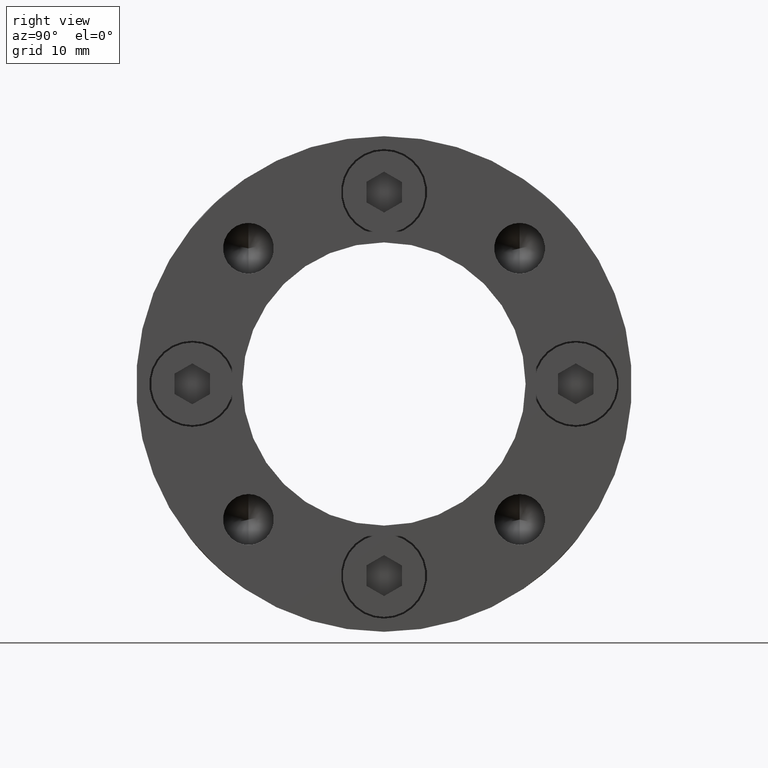
[diagram: clean part render]
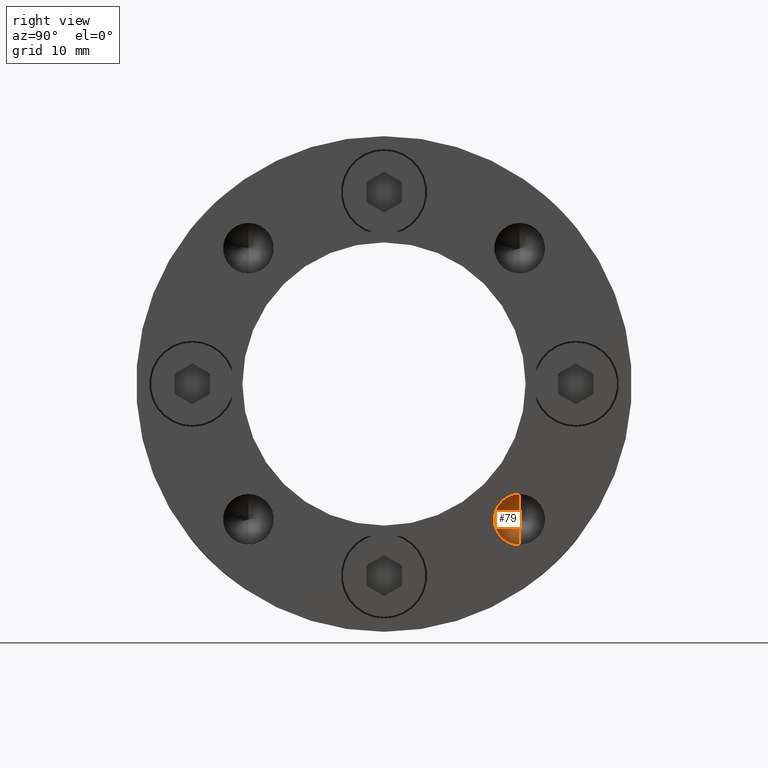
[diagram: same view with one face highlighted and labeled with its STEP entity id]
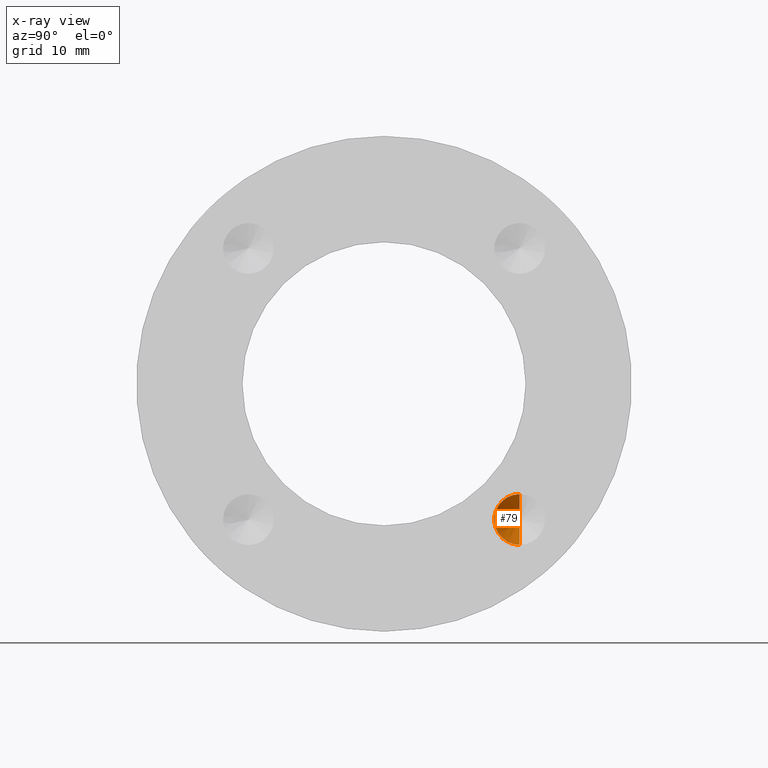
[diagram: x-ray of the same camera — body ghosted, the highlighted face saturated]
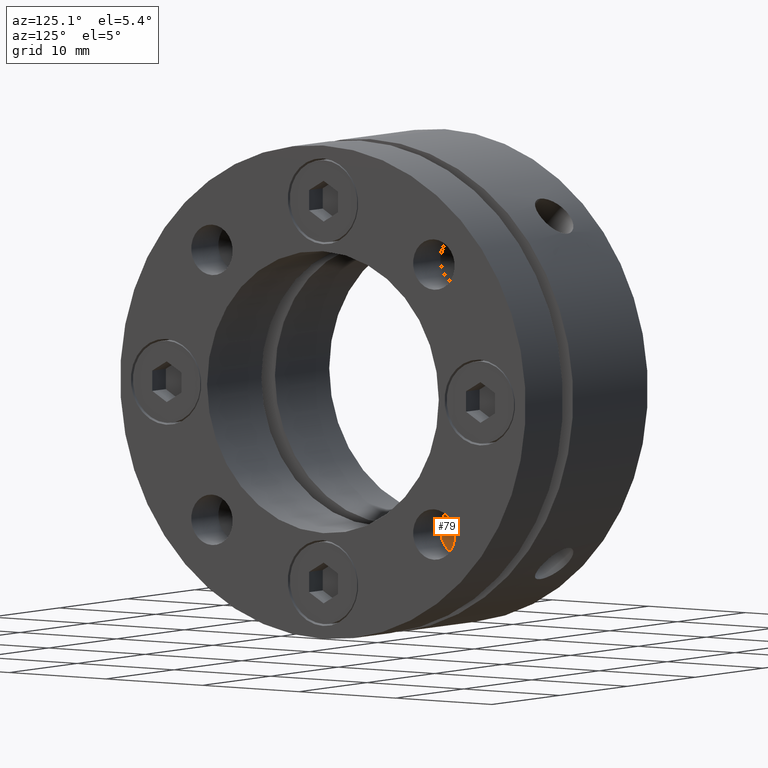
[diagram: same view with one face highlighted and labeled with its STEP entity id]
A machine part, right view. The second image highlights one B-rep face of the part: STEP entity #79.
The next image is the same camera in x-ray: the body ghosted, the highlighted face saturated — about 0% of this face is hidden behind the body in this view.
A second angle (auxiliary view) of the same face is appended — the face is thin or edge-on in the first view.
In plain terms, the highlighted conical surface has half-angle 59 deg.
Its self-contained STEP definition (entity closure, byte-faithful):
#79 = ADVANCED_FACE ( 'NONE', ( #2587 ), #2596, .F. ) ;
#91 = ORIENTED_EDGE ( 'NONE', *, *, #1172, .T. ) ;
#95 = ORIENTED_EDGE ( 'NONE', *, *, #1157, .T. ) ;
#97 = ORIENTED_EDGE ( 'NONE', *, *, #1173, .F. ) ;
#550 = EDGE_LOOP ( 'NONE', ( #97, #91, #95 ) ) ;
#860 = AXIS2_PLACEMENT_3D ( 'NONE', #1664, #1666, #1668 ) ;
#939 = AXIS2_PLACEMENT_3D ( 'NONE', #2879, #2878, #2877 ) ;
#1157 = EDGE_CURVE ( 'NONE', #1842, #1863, #2799, .T. ) ;
#1172 = EDGE_CURVE ( 'NONE', #1792, #1842, #2822, .T. ) ;
#1173 = EDGE_CURVE ( 'NONE', #1792, #1863, #2825, .T. ) ;
#1664 = CARTESIAN_POINT ( 'NONE',  ( 14.00000000114687300, 11.49048519428139800, -11.49048519428139800 ) ) ;
#1666 = DIRECTION ( 'NONE',  ( 1.000000000000000000, 0.0000000000000000000, 0.0000000000000000000 ) ) ;
#1668 = DIRECTION ( 'NONE',  ( 0.0000000000000000000, 0.0000000000000000000, -1.000000000000000000 ) ) ;
#1792 = VERTEX_POINT ( 'NONE', #3473 ) ;
#1842 = VERTEX_POINT ( 'NONE', #3455 ) ;
#1863 = VERTEX_POINT ( 'NONE', #3434 ) ;
#2587 = FACE_OUTER_BOUND ( 'NONE', #550, .T. ) ;
#2596 = CONICAL_SURFACE ( 'NONE', #860, 2.149999999142317100, 1.029744257458113900 ) ;
#2799 = CIRCLE ( 'NONE', #939, 2.149999999999999000 ) ;
#2822 = LINE ( 'NONE', #2936, #2826 ) ;
#2825 = LINE ( 'NONE', #2923, #2828 ) ;
#2826 = VECTOR ( 'NONE', #2942, 1000.000000000000000 ) ;
#2828 = VECTOR ( 'NONE', #2921, 1000.000000000000000 ) ;
#2877 = DIRECTION ( 'NONE',  ( 0.0000000000000000000, 0.0000000000000000000, -1.000000000000000000 ) ) ;
#2878 = DIRECTION ( 'NONE',  ( 1.000000000000000000, 0.0000000000000000000, 0.0000000000000000000 ) ) ;
#2879 = CARTESIAN_POINT ( 'NONE',  ( 13.99999999999999500, 11.49048519428139800, -11.49048519428139800 ) ) ;
#2921 = DIRECTION ( 'NONE',  ( 0.5150380759545473100, 0.0000000000000000000, -0.8571673000745174700 ) ) ;
#2923 = CARTESIAN_POINT ( 'NONE',  ( 14.00000000114687300, 11.49048519428139800, -13.64048519342371600 ) ) ;
#2936 = CARTESIAN_POINT ( 'NONE',  ( 14.00000000114687300, 11.49048519428139800, -9.340485195139081000 ) ) ;
#2942 = DIRECTION ( 'NONE',  ( 0.5150380759545473100, 1.049727190370036600E-016, 0.8571673000745174700 ) ) ;
#3434 = CARTESIAN_POINT ( 'NONE',  ( 13.99999999999999500, 11.49048519428139800, -13.64048519151499100 ) ) ;
#3455 = CARTESIAN_POINT ( 'NONE',  ( 13.99999999999999500, 11.49048519428139800, -9.340485197047806700 ) ) ;
#3473 = CARTESIAN_POINT ( 'NONE',  ( 12.70814966733269100, 11.49048519428139800, -11.49048519431517000 ) ) ;